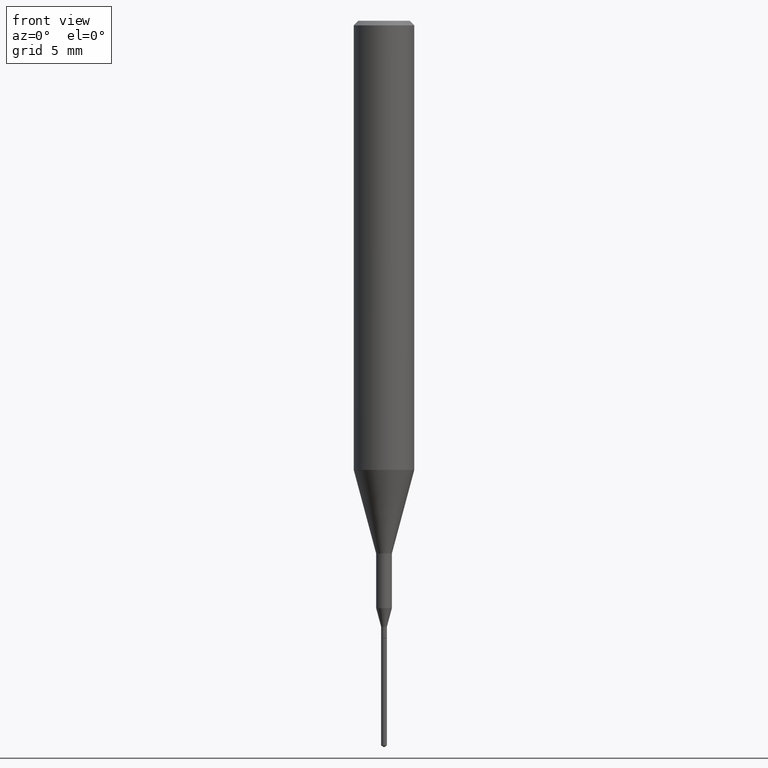
[diagram: clean part render]
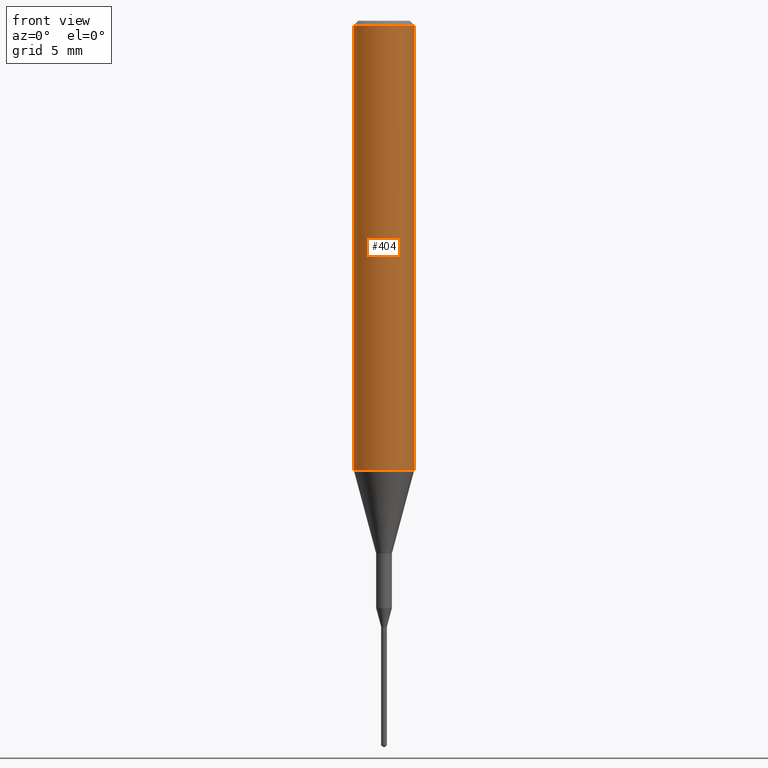
[diagram: same view with one face highlighted and labeled with its STEP entity id]
A machine part, front view. The second image highlights one B-rep face of the part: STEP entity #404.
In plain terms, the highlighted cylindrical surface (edge-blend (fillet) strip) has radius 1.5875 mm, axis along (-0, 0, 1).
Its self-contained STEP definition (entity closure, byte-faithful):
#16 = CARTESIAN_POINT ( 'NONE',  ( 0.06250000000000000000, -4.691678049070463404E-16, -0.009375000000000062103 ) ) ;
#19 = CARTESIAN_POINT ( 'NONE',  ( 0.000000000000000000, 0.000000000000000000, 0.000000000000000000 ) ) ;
#33 = DIRECTION ( 'NONE',  ( -2.445468806185136597E-29, 3.491481338843145583E-15, 1.000000000000000000 ) ) ;
#73 = ORIENTED_EDGE ( 'NONE', *, *, #464, .F. ) ;
#75 = DIRECTION ( 'NONE',  ( -2.445468806185136597E-29, 3.491481338843145583E-15, 1.000000000000000000 ) ) ;
#88 = VECTOR ( 'NONE', #155, 39.37007874015748143 ) ;
#129 = AXIS2_PLACEMENT_3D ( 'NONE', #252, #33, #263 ) ;
#139 = VERTEX_POINT ( 'NONE', #16 ) ;
#148 = VECTOR ( 'NONE', #538, 39.37007874015748143 ) ;
#150 = AXIS2_PLACEMENT_3D ( 'NONE', #19, #75, #258 ) ;
#155 = DIRECTION ( 'NONE',  ( -2.445468806185136877E-29, 3.491481338843145188E-15, 1.000000000000000000 ) ) ;
#162 = EDGE_CURVE ( 'NONE', #356, #417, #450, .T. ) ;
#164 = EDGE_LOOP ( 'NONE', ( #219, #407, #189, #73 ) ) ;
#177 = DIRECTION ( 'NONE',  ( 1.000000000000000000, -6.982962677686266711E-15, 0.000000000000000000 ) ) ;
#187 = CARTESIAN_POINT ( 'NONE',  ( 2.292627005798580623E-31, -3.273263755165470801E-17, -0.009375000000000062103 ) ) ;
#189 = ORIENTED_EDGE ( 'NONE', *, *, #206, .T. ) ;
#206 = EDGE_CURVE ( 'NONE', #261, #139, #240, .T. ) ;
#219 = ORIENTED_EDGE ( 'NONE', *, *, #162, .F. ) ;
#240 = LINE ( 'NONE', #546, #88 ) ;
#250 = FACE_OUTER_BOUND ( 'NONE', #164, .T. ) ;
#252 = CARTESIAN_POINT ( 'NONE',  ( 2.267909797027042920E-29, -3.237974131778804114E-15, -0.9273926501499395458 ) ) ;
#258 = DIRECTION ( 'NONE',  ( 1.000000000000000000, -6.982962677686266711E-15, 4.876176775795935232E-29 ) ) ;
#261 = VERTEX_POINT ( 'NONE', #421 ) ;
#263 = DIRECTION ( 'NONE',  ( 1.000000000000000000, -6.982962677686265922E-15, 0.000000000000000000 ) ) ;
#323 = EDGE_CURVE ( 'NONE', #356, #261, #447, .T. ) ;
#335 = CARTESIAN_POINT ( 'NONE',  ( -0.06250000000000005551, 4.440892098500630106E-16, -3.074334431409318916E-30 ) ) ;
#356 = VERTEX_POINT ( 'NONE', #469 ) ;
#404 = ADVANCED_FACE ( 'NONE', ( #250 ), #424, .T. ) ;
#407 = ORIENTED_EDGE ( 'NONE', *, *, #323, .T. ) ;
#417 = VERTEX_POINT ( 'NONE', #433 ) ;
#421 = CARTESIAN_POINT ( 'NONE',  ( 0.06250000000000011102, -3.674409299134196572E-15, -0.9273926501499395458 ) ) ;
#424 = CYLINDRICAL_SURFACE ( 'NONE', #150, 0.06250000000000005551 ) ;
#433 = CARTESIAN_POINT ( 'NONE',  ( -0.06250000000000000000, -1.191264174815165938E-15, -0.009375000000000062103 ) ) ;
#447 = CIRCLE ( 'NONE', #129, 0.06250000000000011102 ) ;
#450 = LINE ( 'NONE', #335, #148 ) ;
#464 = EDGE_CURVE ( 'NONE', #417, #139, #541, .T. ) ;
#469 = CARTESIAN_POINT ( 'NONE',  ( -0.06250000000000011102, -2.793884921928740709E-15, -0.9273926501499395458 ) ) ;
#522 = AXIS2_PLACEMENT_3D ( 'NONE', #187, #587, #177 ) ;
#538 = DIRECTION ( 'NONE',  ( -2.445468806185136877E-29, 3.491481338843145188E-15, 1.000000000000000000 ) ) ;
#541 = CIRCLE ( 'NONE', #522, 0.06250000000000000000 ) ;
#546 = CARTESIAN_POINT ( 'NONE',  ( 0.06250000000000005551, -4.364351673553920638E-16, 3.047610484872462323E-30 ) ) ;
#587 = DIRECTION ( 'NONE',  ( -2.445468806185136597E-29, 3.491481338843145583E-15, 1.000000000000000000 ) ) ;